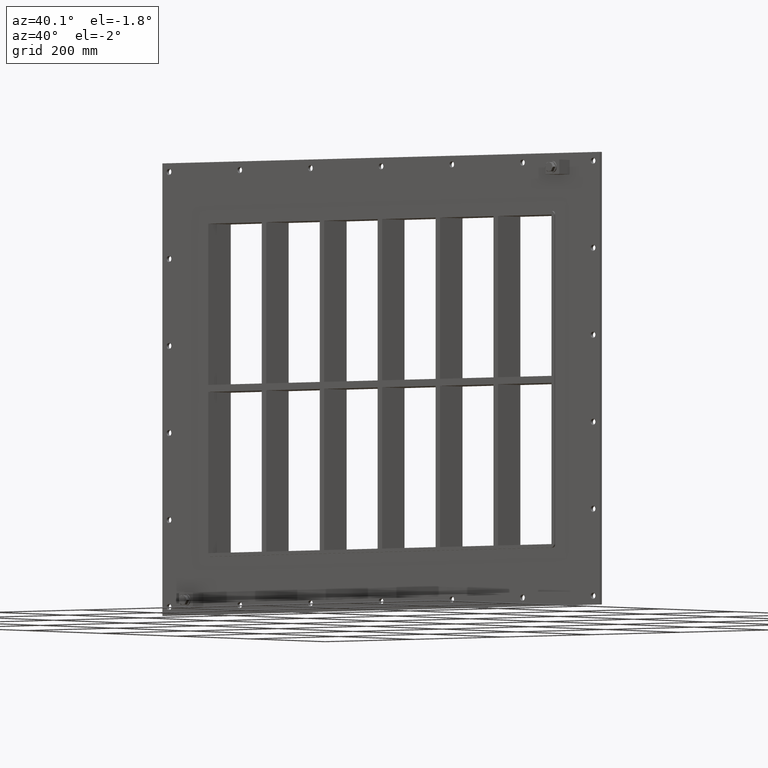
[diagram: clean part render]
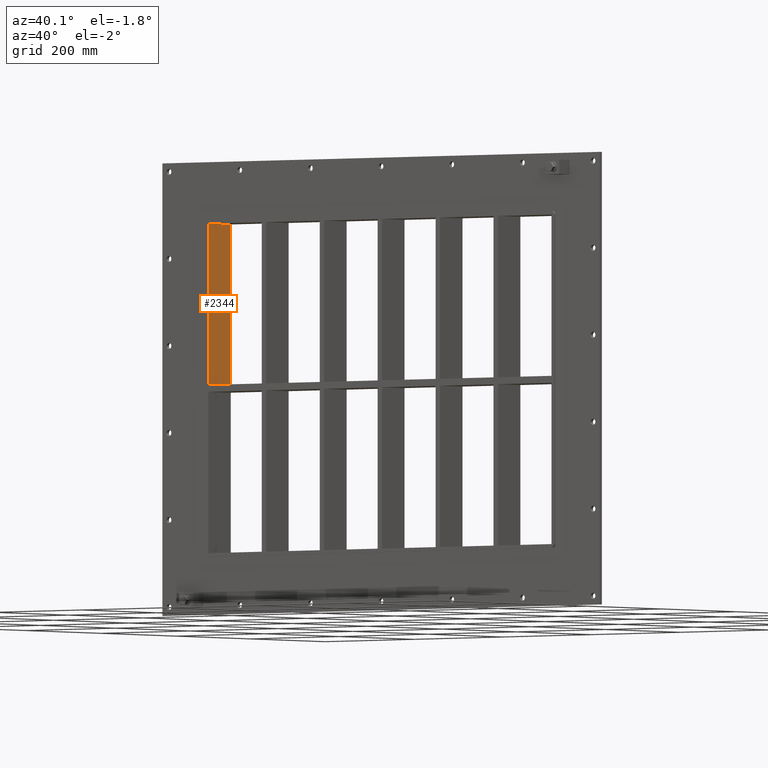
[diagram: same view with one face highlighted and labeled with its STEP entity id]
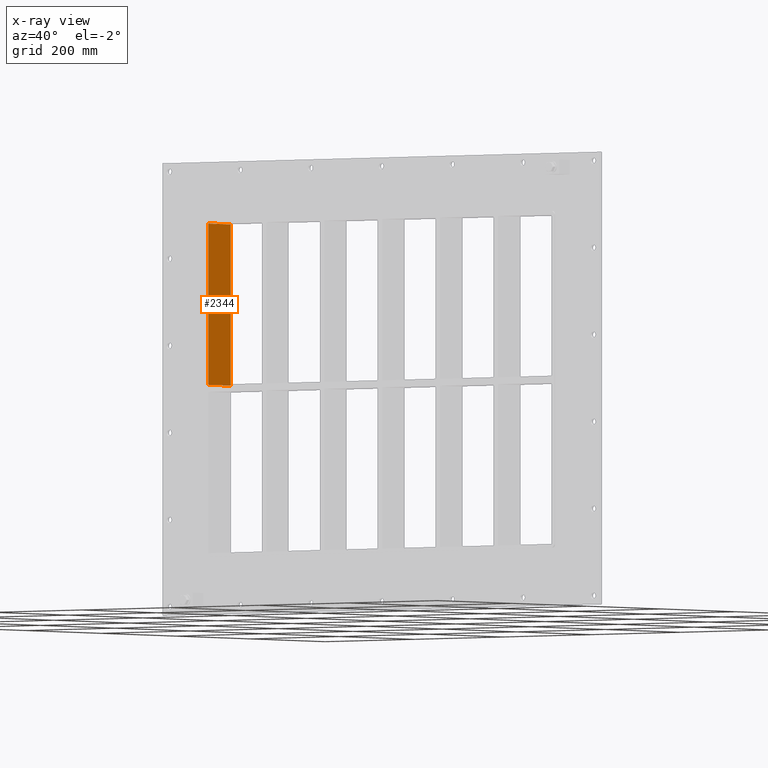
[diagram: x-ray of the same camera — body ghosted, the highlighted face saturated]
A machine part, auxiliary view. The second image highlights one B-rep face of the part: STEP entity #2344.
The next image is the same camera in x-ray: the body ghosted, the highlighted face saturated — about 0% of this face is hidden behind the body in this view.
In plain terms, the highlighted planar face has unit normal (-1, 0, 0).
Its self-contained STEP definition (entity closure, byte-faithful):
#1694=CARTESIAN_POINT('',(-386.49999999999739,-3.0,5.999999999999091));
#1695=VERTEX_POINT('',#1694);
#1696=CARTESIAN_POINT('',(-386.50000000000006,-3.0,284.00000000000006));
#1697=VERTEX_POINT('',#1696);
#1698=CARTESIAN_POINT('',(-386.50000000000006,-3.0,5.999999999999091));
#1699=DIRECTION('',(0.0,0.0,1.0));
#1700=VECTOR('',#1699,278.00000000000091);
#1701=LINE('',#1698,#1700);
#1702=EDGE_CURVE('',#1695,#1697,#1701,.T.);
#2038=CARTESIAN_POINT('',(-386.49999999999739,57.0,5.999999999999091));
#2039=VERTEX_POINT('',#2038);
#2056=CARTESIAN_POINT('',(-386.50000000000006,57.0,284.00000000000006));
#2057=VERTEX_POINT('',#2056);
#2064=CARTESIAN_POINT('',(-386.50000000000006,57.0,284.0));
#2065=DIRECTION('',(0.0,0.0,-1.0));
#2066=VECTOR('',#2065,278.00000000000091);
#2067=LINE('',#2064,#2066);
#2068=EDGE_CURVE('',#2057,#2039,#2067,.T.);
#2318=CARTESIAN_POINT('',(-386.50000000000006,-3.0,5.999999999999091));
#2319=DIRECTION('',(0.0,1.0,0.0));
#2320=VECTOR('',#2319,60.000000000000007);
#2321=LINE('',#2318,#2320);
#2322=EDGE_CURVE('',#1695,#2039,#2321,.T.);
#2328=CARTESIAN_POINT('',(-386.50000000000006,0.0,-283.99999999999989));
#2329=DIRECTION('',(-1.0,0.0,0.0));
#2330=DIRECTION('',(0.0,0.0,1.0));
#2331=AXIS2_PLACEMENT_3D('',#2328,#2329,#2330);
#2332=PLANE('',#2331);
#2333=ORIENTED_EDGE('',*,*,#2322,.T.);
#2334=ORIENTED_EDGE('',*,*,#2068,.F.);
#2335=CARTESIAN_POINT('',(-386.50000000000006,-3.0,284.0));
#2336=DIRECTION('',(0.0,1.0,0.0));
#2337=VECTOR('',#2336,60.0);
#2338=LINE('',#2335,#2337);
#2339=EDGE_CURVE('',#1697,#2057,#2338,.T.);
#2340=ORIENTED_EDGE('',*,*,#2339,.F.);
#2341=ORIENTED_EDGE('',*,*,#1702,.F.);
#2342=EDGE_LOOP('',(#2333,#2334,#2340,#2341));
#2343=FACE_OUTER_BOUND('',#2342,.T.);
#2344=ADVANCED_FACE('',(#2343),#2332,.F.);